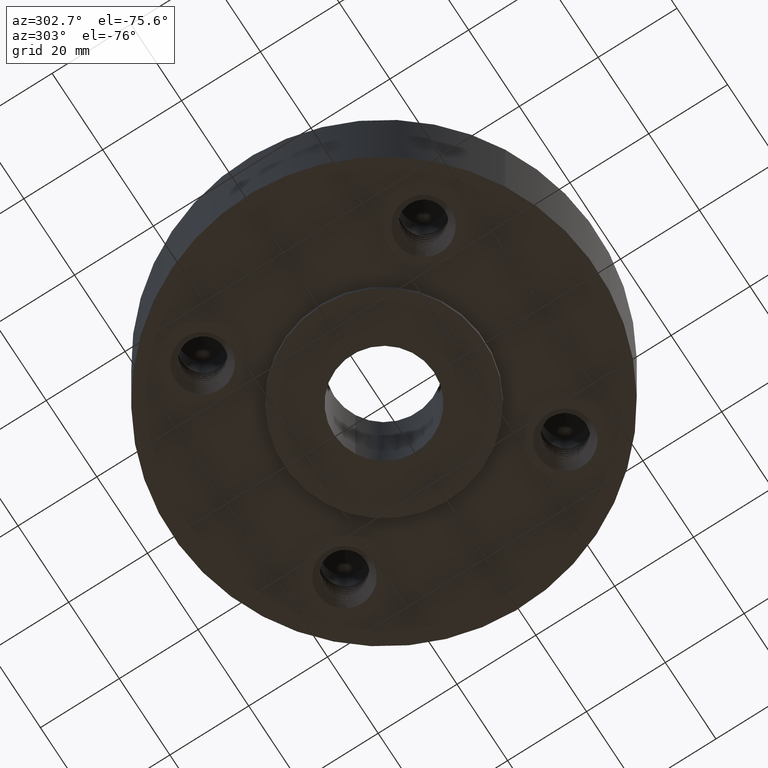
[diagram: clean part render]
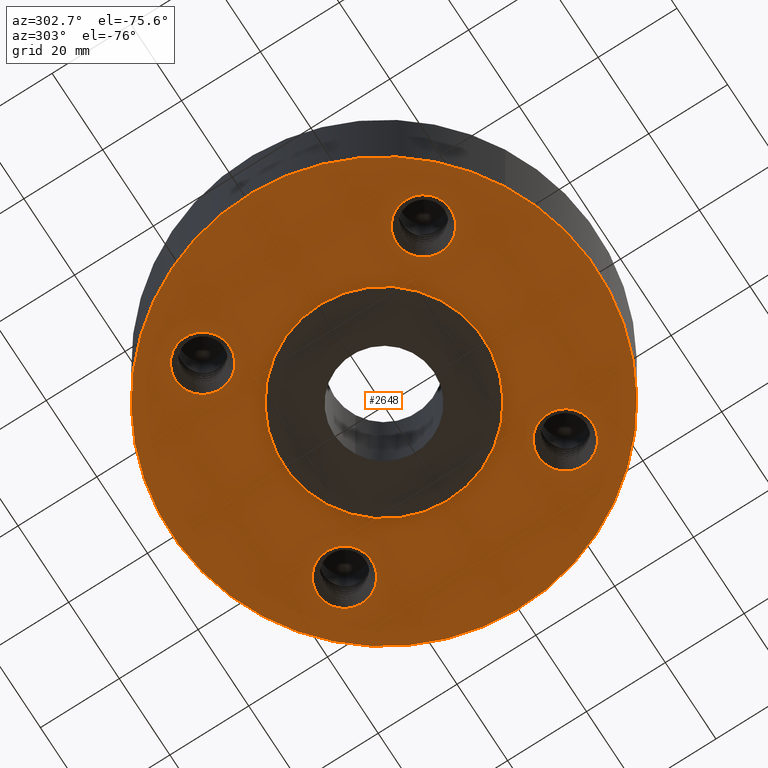
[diagram: same view with one face highlighted and labeled with its STEP entity id]
A machine part, auxiliary view. The second image highlights one B-rep face of the part: STEP entity #2648.
In plain terms, the highlighted planar face has unit normal (0, 0, -1).
Its self-contained STEP definition (entity closure, byte-faithful):
#2399=AXIS2_PLACEMENT_3D('Circle Axis2P3D',#2397,#2398,$) ;
#2538=AXIS2_PLACEMENT_3D('Circle Axis2P3D',#2536,#2537,$) ;
#2552=AXIS2_PLACEMENT_3D('Plane Axis2P3D',#2549,#2550,#2551) ;
#2556=AXIS2_PLACEMENT_3D('Circle Axis2P3D',#2554,#2555,$) ;
#2565=AXIS2_PLACEMENT_3D('Circle Axis2P3D',#2563,#2564,$) ;
#2578=AXIS2_PLACEMENT_3D('Circle Axis2P3D',#2576,#2577,$) ;
#2587=AXIS2_PLACEMENT_3D('Circle Axis2P3D',#2585,#2586,$) ;
#2596=AXIS2_PLACEMENT_3D('Circle Axis2P3D',#2594,#2595,$) ;
#2605=AXIS2_PLACEMENT_3D('Circle Axis2P3D',#2603,#2604,$) ;
#2614=AXIS2_PLACEMENT_3D('Circle Axis2P3D',#2612,#2613,$) ;
#2623=AXIS2_PLACEMENT_3D('Circle Axis2P3D',#2621,#2622,$) ;
#2632=AXIS2_PLACEMENT_3D('Circle Axis2P3D',#2630,#2631,$) ;
#2641=AXIS2_PLACEMENT_3D('Circle Axis2P3D',#2639,#2640,$) ;
#2394=CARTESIAN_POINT('Vertex',(1.34091145293,1.23301089962,0.)) ;
#2397=CARTESIAN_POINT('Axis2P3D Location',(1.10308657866,1.10308657866,0.)) ;
#2401=CARTESIAN_POINT('Vertex',(0.865261704382,0.973162257693,0.)) ;
#2536=CARTESIAN_POINT('Axis2P3D Location',(1.10308657866,1.10308657866,0.)) ;
#2549=CARTESIAN_POINT('Axis2P3D Location',(0.,2.12500000001,0.)) ;
#2554=CARTESIAN_POINT('Axis2P3D Location',(0.,0.,0.)) ;
#2558=CARTESIAN_POINT('Vertex',(-1.01877926954,-1.86486294402,-3.87441609853E-014)) ;
#2560=CARTESIAN_POINT('Vertex',(1.01877926954,1.86486294402,-3.87441609853E-014)) ;
#2563=CARTESIAN_POINT('Axis2P3D Location',(0.,0.,0.)) ;
#2576=CARTESIAN_POINT('Axis2P3D Location',(0.,0.,0.)) ;
#2580=CARTESIAN_POINT('Vertex',(0.479425538606,0.877582561894,-2.86734765415E-014)) ;
#2582=CARTESIAN_POINT('Vertex',(-0.479425538606,-0.877582561894,-2.86734765415E-014)) ;
#2585=CARTESIAN_POINT('Axis2P3D Location',(0.,0.,0.)) ;
#2594=CARTESIAN_POINT('Axis2P3D Location',(1.10308657866,-1.10308657866,0.)) ;
#2598=CARTESIAN_POINT('Vertex',(1.23301089962,-1.34091145293,0.)) ;
#2600=CARTESIAN_POINT('Vertex',(0.973162257693,-0.865261704382,0.)) ;
#2603=CARTESIAN_POINT('Axis2P3D Location',(1.10308657866,-1.10308657866,0.)) ;
#2612=CARTESIAN_POINT('Axis2P3D Location',(-1.10308657866,-1.10308657866,0.)) ;
#2616=CARTESIAN_POINT('Vertex',(-1.34091145293,-1.23301089962,0.)) ;
#2618=CARTESIAN_POINT('Vertex',(-0.865261704382,-0.973162257693,0.)) ;
#2621=CARTESIAN_POINT('Axis2P3D Location',(-1.10308657866,-1.10308657866,0.)) ;
#2630=CARTESIAN_POINT('Axis2P3D Location',(-1.10308657866,1.10308657866,0.)) ;
#2634=CARTESIAN_POINT('Vertex',(-1.23301089962,1.34091145293,0.)) ;
#2636=CARTESIAN_POINT('Vertex',(-0.973162257693,0.865261704382,0.)) ;
#2639=CARTESIAN_POINT('Axis2P3D Location',(-1.10308657866,1.10308657866,0.)) ;
#2398=DIRECTION('Axis2P3D Direction',(0.,0.,-0.0393700787402)) ;
#2537=DIRECTION('Axis2P3D Direction',(0.,0.,-0.0393700787402)) ;
#2550=DIRECTION('Axis2P3D Direction',(0.,0.,-0.0393700787402)) ;
#2551=DIRECTION('Axis2P3D XDirection',(0.0393700787402,0.,0.)) ;
#2555=DIRECTION('Axis2P3D Direction',(0.,0.,-0.0393700787402)) ;
#2564=DIRECTION('Axis2P3D Direction',(0.,0.,-0.0393700787402)) ;
#2577=DIRECTION('Axis2P3D Direction',(0.,0.,-0.0393700787402)) ;
#2586=DIRECTION('Axis2P3D Direction',(0.,0.,-0.0393700787402)) ;
#2595=DIRECTION('Axis2P3D Direction',(0.,0.,-0.0393700787402)) ;
#2604=DIRECTION('Axis2P3D Direction',(0.,0.,-0.0393700787402)) ;
#2613=DIRECTION('Axis2P3D Direction',(0.,0.,-0.0393700787402)) ;
#2622=DIRECTION('Axis2P3D Direction',(0.,0.,-0.0393700787402)) ;
#2631=DIRECTION('Axis2P3D Direction',(0.,0.,-0.0393700787402)) ;
#2640=DIRECTION('Axis2P3D Direction',(0.,0.,-0.0393700787402)) ;
#2569=ORIENTED_EDGE('',*,*,#2562,.T.) ;
#2570=ORIENTED_EDGE('',*,*,#2567,.T.) ;
#2573=ORIENTED_EDGE('',*,*,#2540,.F.) ;
#2574=ORIENTED_EDGE('',*,*,#2403,.F.) ;
#2591=ORIENTED_EDGE('',*,*,#2584,.F.) ;
#2592=ORIENTED_EDGE('',*,*,#2589,.F.) ;
#2609=ORIENTED_EDGE('',*,*,#2602,.F.) ;
#2610=ORIENTED_EDGE('',*,*,#2607,.F.) ;
#2627=ORIENTED_EDGE('',*,*,#2620,.F.) ;
#2628=ORIENTED_EDGE('',*,*,#2625,.F.) ;
#2645=ORIENTED_EDGE('',*,*,#2638,.F.) ;
#2646=ORIENTED_EDGE('',*,*,#2643,.F.) ;
#2575=FACE_BOUND('',#2572,.T.) ;
#2593=FACE_BOUND('',#2590,.T.) ;
#2611=FACE_BOUND('',#2608,.T.) ;
#2629=FACE_BOUND('',#2626,.T.) ;
#2647=FACE_BOUND('',#2644,.T.) ;
#2648=ADVANCED_FACE('PartBody',(#2571,#2575,#2593,#2611,#2629,#2647),#2553,.T.) ;
#2400=CIRCLE('generated circle',#2399,0.271000000001) ;
#2539=CIRCLE('generated circle',#2538,0.271000000001) ;
#2557=CIRCLE('generated circle',#2556,2.12500000001) ;
#2566=CIRCLE('generated circle',#2565,2.12500000001) ;
#2579=CIRCLE('generated circle',#2578,1.) ;
#2588=CIRCLE('generated circle',#2587,1.) ;
#2597=CIRCLE('generated circle',#2596,0.271000000001) ;
#2606=CIRCLE('generated circle',#2605,0.271000000001) ;
#2615=CIRCLE('generated circle',#2614,0.271000000001) ;
#2624=CIRCLE('generated circle',#2623,0.271000000001) ;
#2633=CIRCLE('generated circle',#2632,0.271000000001) ;
#2642=CIRCLE('generated circle',#2641,0.271000000001) ;
#2403=EDGE_CURVE('',#2395,#2402,#2400,.T.) ;
#2540=EDGE_CURVE('',#2402,#2395,#2539,.T.) ;
#2562=EDGE_CURVE('',#2559,#2561,#2557,.T.) ;
#2567=EDGE_CURVE('',#2561,#2559,#2566,.T.) ;
#2584=EDGE_CURVE('',#2581,#2583,#2579,.T.) ;
#2589=EDGE_CURVE('',#2583,#2581,#2588,.T.) ;
#2602=EDGE_CURVE('',#2599,#2601,#2597,.T.) ;
#2607=EDGE_CURVE('',#2601,#2599,#2606,.T.) ;
#2620=EDGE_CURVE('',#2617,#2619,#2615,.T.) ;
#2625=EDGE_CURVE('',#2619,#2617,#2624,.T.) ;
#2638=EDGE_CURVE('',#2635,#2637,#2633,.T.) ;
#2643=EDGE_CURVE('',#2637,#2635,#2642,.T.) ;
#2568=EDGE_LOOP('',(#2569,#2570)) ;
#2572=EDGE_LOOP('',(#2573,#2574)) ;
#2590=EDGE_LOOP('',(#2591,#2592)) ;
#2608=EDGE_LOOP('',(#2609,#2610)) ;
#2626=EDGE_LOOP('',(#2627,#2628)) ;
#2644=EDGE_LOOP('',(#2645,#2646)) ;
#2571=FACE_OUTER_BOUND('',#2568,.T.) ;
#2553=PLANE('',#2552) ;
#2395=VERTEX_POINT('',#2394) ;
#2402=VERTEX_POINT('',#2401) ;
#2559=VERTEX_POINT('',#2558) ;
#2561=VERTEX_POINT('',#2560) ;
#2581=VERTEX_POINT('',#2580) ;
#2583=VERTEX_POINT('',#2582) ;
#2599=VERTEX_POINT('',#2598) ;
#2601=VERTEX_POINT('',#2600) ;
#2617=VERTEX_POINT('',#2616) ;
#2619=VERTEX_POINT('',#2618) ;
#2635=VERTEX_POINT('',#2634) ;
#2637=VERTEX_POINT('',#2636) ;